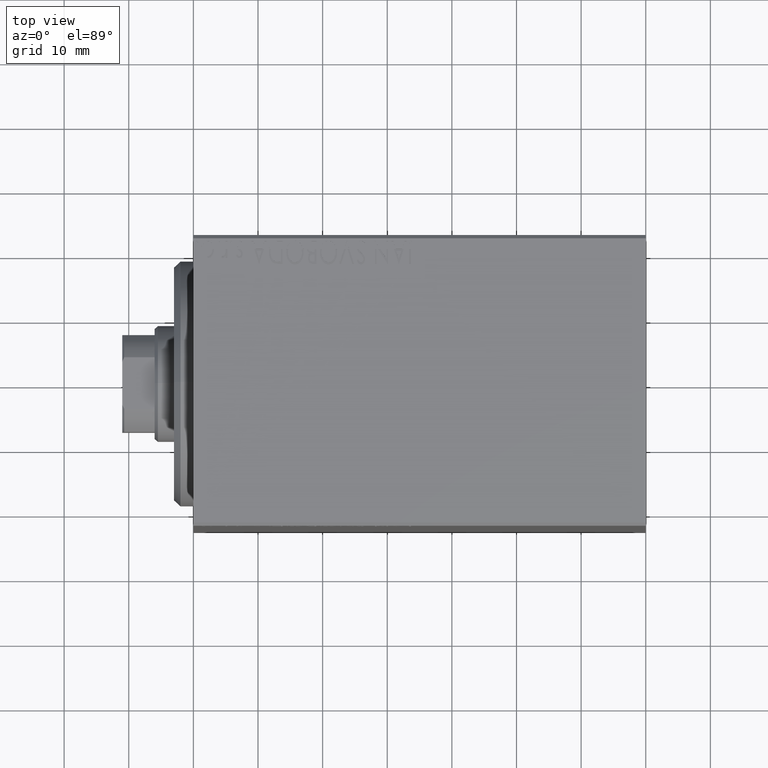
[diagram: clean part render]
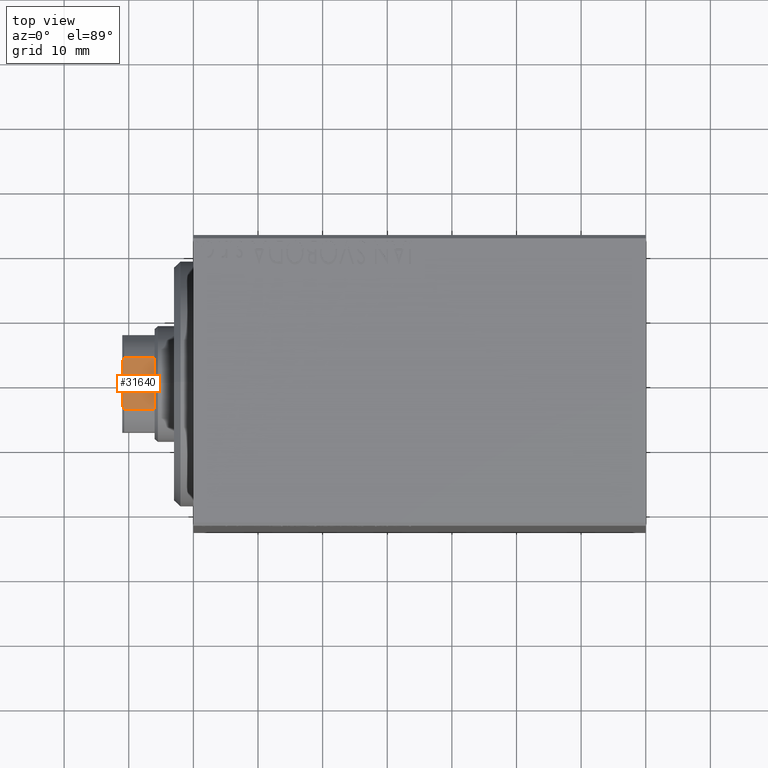
[diagram: same view with one face highlighted and labeled with its STEP entity id]
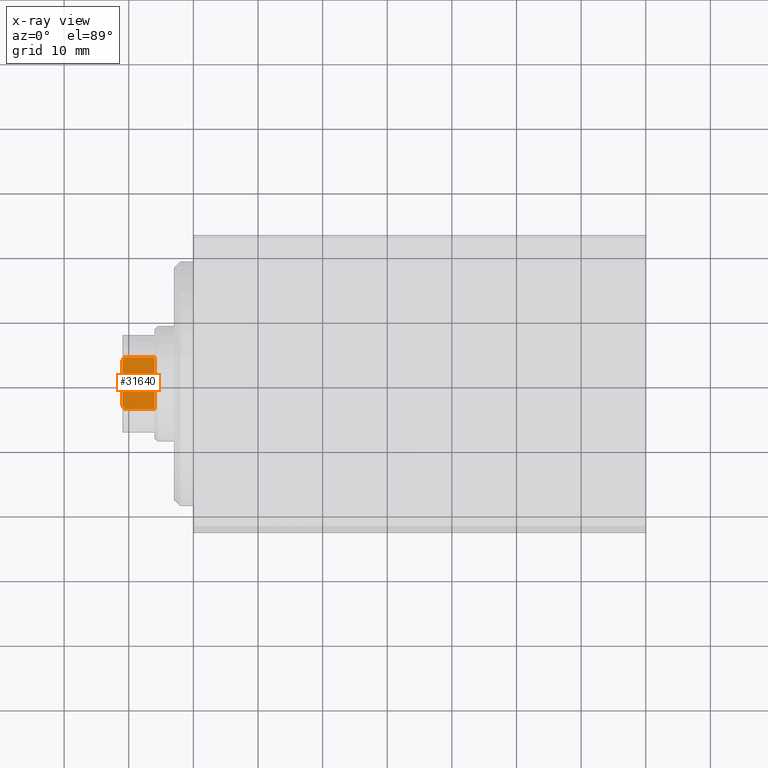
[diagram: x-ray of the same camera — body ghosted, the highlighted face saturated]
A machine part, top view. The second image highlights one B-rep face of the part: STEP entity #31640.
The next image is the same camera in x-ray: the body ghosted, the highlighted face saturated — about 0% of this face is hidden behind the body in this view.
In plain terms, the highlighted planar face has unit normal (-0, -0, -1).
Its self-contained STEP definition (entity closure, byte-faithful):
#2036 = LINE ( 'NONE', #31976, #29497 ) ;
#2329 = EDGE_LOOP ( 'NONE', ( #41914, #42786, #8305, #16402, #10182, #24946 ) ) ;
#2361 = VECTOR ( 'NONE', #42909, 1000.000000000000000 ) ;
#3756 = DIRECTION ( 'NONE',  ( -1.000000000000000000, -1.156482317317871478E-16, 0.000000000000000000 ) ) ;
#5159 = EDGE_CURVE ( 'NONE', #34245, #21467, #41555, .T. ) ;
#5385 = B_SPLINE_CURVE_WITH_KNOTS ( 'NONE', 3,
 ( #30237, #43886, #29782, #26015 ),
 .UNSPECIFIED., .F., .F.,
 ( 4, 4 ),
 ( 8.673617379884035472E-19, 0.0007477064084242732427 ),
 .UNSPECIFIED. ) ;
#7889 = CARTESIAN_POINT ( 'NONE',  ( 7.499999999999997335, 4.000000000000007105, 74.70000000000001705 ) ) ;
#8305 = ORIENTED_EDGE ( 'NONE', *, *, #5159, .F. ) ;
#8334 = DIRECTION ( 'NONE',  ( -0.000000000000000000, -0.000000000000000000, 1.000000000000000000 ) ) ;
#8604 = VERTEX_POINT ( 'NONE', #15022 ) ;
#8656 = VECTOR ( 'NONE', #8334, 1000.000000000000000 ) ;
#8744 = DIRECTION ( 'NONE',  ( -0.000000000000000000, -0.000000000000000000, 1.000000000000000000 ) ) ;
#10182 = ORIENTED_EDGE ( 'NONE', *, *, #12118, .F. ) ;
#12118 = EDGE_CURVE ( 'NONE', #44032, #41181, #41870, .T. ) ;
#14240 = FACE_OUTER_BOUND ( 'NONE', #2329, .T. ) ;
#15022 = CARTESIAN_POINT ( 'NONE',  ( 7.499999999999997335, 4.000000000000007105, 74.70000000000001705 ) ) ;
#15836 = CARTESIAN_POINT ( 'NONE',  ( 7.499999999999997335, 7.500000000000000888, 70.00000000000000000 ) ) ;
#16402 = ORIENTED_EDGE ( 'NONE', *, *, #34164, .T. ) ;
#16818 = CARTESIAN_POINT ( 'NONE',  ( 7.499999999999998224, -3.315116890850184461, 75.00000000000001421 ) ) ;
#18001 = CARTESIAN_POINT ( 'NONE',  ( 7.499999999999995559, -4.000000000000009770, 74.70000000000001705 ) ) ;
#18660 = EDGE_CURVE ( 'NONE', #27570, #8604, #2036, .T. ) ;
#18695 = CARTESIAN_POINT ( 'NONE',  ( 7.499999999999998224, 3.315116890850192899, 75.00000000000001421 ) ) ;
#20717 = CARTESIAN_POINT ( 'NONE',  ( 7.499999999999997335, 7.500000000000000888, 75.00000000000001421 ) ) ;
#21061 = CARTESIAN_POINT ( 'NONE',  ( 7.499999999999998224, 3.546278369582425594, 74.90654544845632756 ) ) ;
#21467 = VERTEX_POINT ( 'NONE', #18695 ) ;
#22327 = LINE ( 'NONE', #15836, #2361 ) ;
#22791 = AXIS2_PLACEMENT_3D ( 'NONE', #20717, #3756, #35024 ) ;
#24946 = ORIENTED_EDGE ( 'NONE', *, *, #39857, .T. ) ;
#26015 = CARTESIAN_POINT ( 'NONE',  ( 7.499999999999995559, -4.000000000000009770, 74.70000000000001705 ) ) ;
#26375 = CARTESIAN_POINT ( 'NONE',  ( 7.499999999999995559, -4.000000000000009770, 70.00000000000001421 ) ) ;
#26792 = CARTESIAN_POINT ( 'NONE',  ( 7.499999999999997335, 4.000000000000007105, 70.00000000000001421 ) ) ;
#27570 = VERTEX_POINT ( 'NONE', #26792 ) ;
#27908 = CARTESIAN_POINT ( 'NONE',  ( 7.499999999999997335, 7.500000000000000888, 75.00000000000001421 ) ) ;
#29497 = VECTOR ( 'NONE', #8744, 1000.000000000000000 ) ;
#29782 = CARTESIAN_POINT ( 'NONE',  ( 7.499999999999999112, -3.774404943294790371, 74.80616237962604487 ) ) ;
#30237 = CARTESIAN_POINT ( 'NONE',  ( 7.499999999999998224, -3.315116890850184461, 75.00000000000001421 ) ) ;
#30811 = DIRECTION ( 'NONE',  ( -1.156482317317871478E-16, 1.000000000000000000, -0.000000000000000000 ) ) ;
#31571 = CARTESIAN_POINT ( 'NONE',  ( 7.499999999999998224, 3.315116890850192899, 75.00000000000001421 ) ) ;
#31640 = ADVANCED_FACE ( 'NONE', ( #14240 ), #34138, .F. ) ;
#31976 = CARTESIAN_POINT ( 'NONE',  ( 7.499999999999997335, 4.000000000000007105, -0.001000000000001000089 ) ) ;
#34138 = PLANE ( 'NONE',  #22791 ) ;
#34164 = EDGE_CURVE ( 'NONE', #34245, #41181, #5385, .T. ) ;
#34245 = VERTEX_POINT ( 'NONE', #16818 ) ;
#35024 = DIRECTION ( 'NONE',  ( 1.156482317317871478E-16, -1.000000000000000000, 0.000000000000000000 ) ) ;
#35148 = CARTESIAN_POINT ( 'NONE',  ( 7.499999999999997335, 3.774404943294777048, 74.80616237962600223 ) ) ;
#35161 = CARTESIAN_POINT ( 'NONE',  ( 7.499999999999995559, -4.000000000000009770, -0.001000000000001000089 ) ) ;
#38184 = B_SPLINE_CURVE_WITH_KNOTS ( 'NONE', 3,
 ( #7889, #35148, #21061, #31571 ),
 .UNSPECIFIED., .F., .F.,
 ( 4, 4 ),
 ( 0.000000000000000000, 0.0007477064084242645691 ),
 .UNSPECIFIED. ) ;
#38257 = EDGE_CURVE ( 'NONE', #8604, #21467, #38184, .T. ) ;
#39857 = EDGE_CURVE ( 'NONE', #44032, #27570, #22327, .T. ) ;
#41181 = VERTEX_POINT ( 'NONE', #18001 ) ;
#41396 = VECTOR ( 'NONE', #30811, 1000.000000000000000 ) ;
#41555 = LINE ( 'NONE', #27908, #41396 ) ;
#41870 = LINE ( 'NONE', #35161, #8656 ) ;
#41914 = ORIENTED_EDGE ( 'NONE', *, *, #18660, .T. ) ;
#42786 = ORIENTED_EDGE ( 'NONE', *, *, #38257, .T. ) ;
#42909 = DIRECTION ( 'NONE',  ( -1.156482317317871478E-16, 1.000000000000000000, -0.000000000000000000 ) ) ;
#43886 = CARTESIAN_POINT ( 'NONE',  ( 7.499999999999998224, -3.546278369582376744, 74.90654544845624230 ) ) ;
#44032 = VERTEX_POINT ( 'NONE', #26375 ) ;